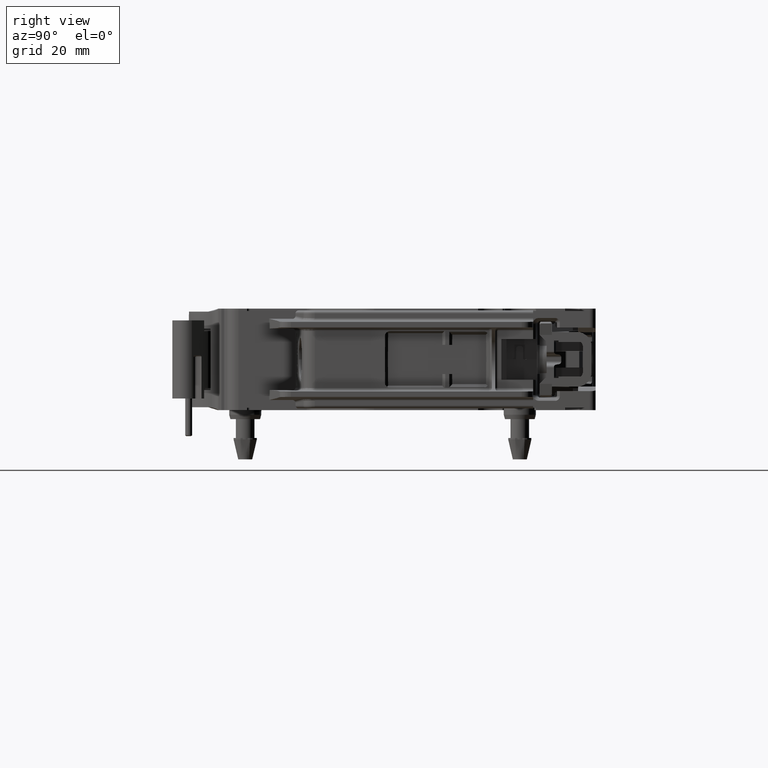
[diagram: clean part render]
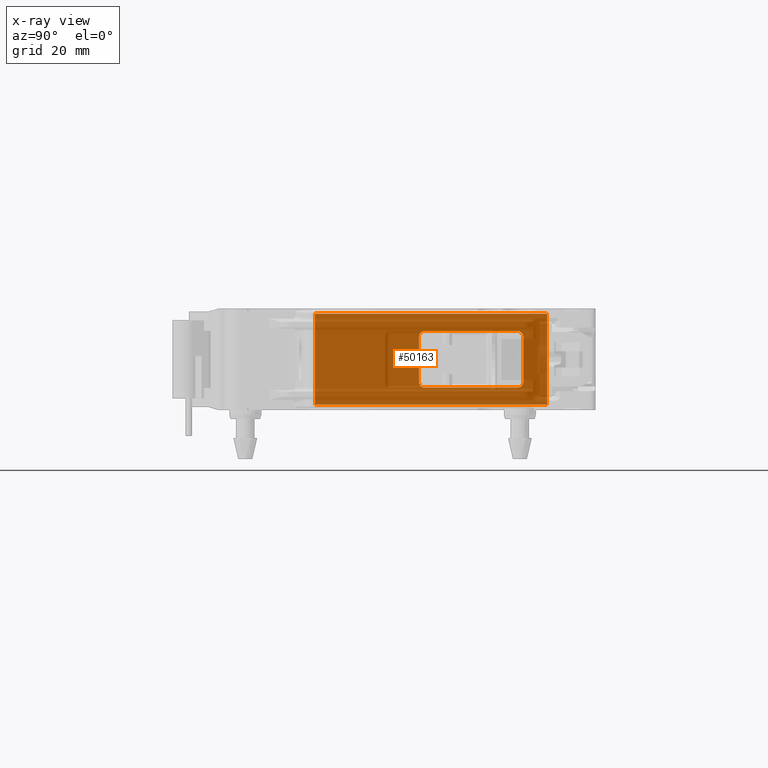
[diagram: x-ray — body ghosted, one internal face saturated and labeled with its STEP entity id]
A machine part, right view, then the same camera in x-ray: the body is ghosted and one INTERNAL B-rep face — a face not visible from any outside direction — is saturated and labeled: STEP entity #50163.
In plain terms, the highlighted planar face has unit normal (-1, -0.0049, 0).
Its self-contained STEP definition (entity closure, byte-faithful):
#15005=CARTESIAN_POINT('',(-4.270065404185E1,-1.71E0,-7.8E0));
#15006=CARTESIAN_POINT('',(-4.270069525104E1,-1.701666717612E0,-7.8E0));
#15007=CARTESIAN_POINT('',(-4.270077261423E1,-1.686022413081E0,
-7.801022272743E0));
#15008=CARTESIAN_POINT('',(-4.270091249419E1,-1.657736028279E0,
-7.806069079199E0));
#15009=CARTESIAN_POINT('',(-4.270106532951E1,-1.626829824631E0,
-7.816829419056E0));
#15010=CARTESIAN_POINT('',(-4.270122253608E1,-1.595039671126E0,
-7.835039182527E0));
#15011=CARTESIAN_POINT('',(-4.270135699991E1,-1.567848532335E0,
-7.857848016945E0));
#15012=CARTESIAN_POINT('',(-4.270146979323E1,-1.545039581489E0,
-7.885039092889E0));
#15013=CARTESIAN_POINT('',(-4.270155984370E1,-1.526829666753E0,
-7.916829261176E0));
#15014=CARTESIAN_POINT('',(-4.270161305569E1,-1.516069190198E0,
-7.947735574449E0));
#15015=CARTESIAN_POINT('',(-4.270163801326E1,-1.511022296685E0,
-7.976022156346E0));
#15016=CARTESIAN_POINT('',(-4.270164306865E1,-1.51E0,-7.991666615720E0));
#15017=CARTESIAN_POINT('',(-4.270164306865E1,-1.51E0,-8.E0));
#15060=DIRECTION('',(-4.945073575063E-3,9.999877730489E-1,0.E0));
#15061=VECTOR('',#15060,3.964865029611E1);
#15062=CARTESIAN_POINT('',(-4.250458854898E1,-4.135816551400E1,-7.8E0));
#15063=LINE('',#15062,#15061);
#16122=CARTESIAN_POINT('',(-4.259779525383E1,-2.251E1,-4.85E0));
#16123=CARTESIAN_POINT('',(-4.259758920784E1,-2.255166641194E1,-4.85E0));
#16124=CARTESIAN_POINT('',(-4.259720241381E1,-2.262988350933E1,
-4.844884210967E0));
#16125=CARTESIAN_POINT('',(-4.259667776547E1,-2.273597736602E1,
-4.825978600683E0));
#16126=CARTESIAN_POINT('',(-4.259619760595E1,-2.283307473748E1,
-4.798076395169E0));
#16127=CARTESIAN_POINT('',(-4.259560764533E1,-2.295237597736E1,
-4.750711408164E0));
#16128=CARTESIAN_POINT('',(-4.259495284255E1,-2.308478953308E1,
-4.674791975924E0));
#16129=CARTESIAN_POINT('',(-4.259428043358E1,-2.322076339411E1,
-4.560765971134E0));
#16130=CARTESIAN_POINT('',(-4.259371655683E1,-2.333478998070E1,
-4.424792423551E0));
#16131=CARTESIAN_POINT('',(-4.259334112193E1,-2.341071004501E1,
-4.292378809154E0));
#16132=CARTESIAN_POINT('',(-4.259310689309E1,-2.345807556438E1,
-4.173077222074E0));
#16133=CARTESIAN_POINT('',(-4.259296891104E1,-2.348597815516E1,
-4.075979389829E0));
#16134=CARTESIAN_POINT('',(-4.259287541865E1,-2.350488409107E1,
-3.969884792714E0));
#16135=CARTESIAN_POINT('',(-4.259285011980E1,-2.351E1,-3.891666921398E0));
#16136=CARTESIAN_POINT('',(-4.259285011980E1,-2.351E1,-3.85E0));
#16151=CARTESIAN_POINT('',(-4.259285011980E1,-2.351E1,3.85E0));
#16152=CARTESIAN_POINT('',(-4.259285011980E1,-2.351E1,3.891666921398E0));
#16153=CARTESIAN_POINT('',(-4.259287541865E1,-2.350488409107E1,
3.969884792714E0));
#16154=CARTESIAN_POINT('',(-4.259296891104E1,-2.348597815516E1,
4.075979389829E0));
#16155=CARTESIAN_POINT('',(-4.259310689309E1,-2.345807556438E1,
4.173077222074E0));
#16156=CARTESIAN_POINT('',(-4.259334112193E1,-2.341071004501E1,
4.292378809154E0));
#16157=CARTESIAN_POINT('',(-4.259371655683E1,-2.333478998070E1,
4.424792423551E0));
#16158=CARTESIAN_POINT('',(-4.259428043358E1,-2.322076339411E1,
4.560765971134E0));
#16159=CARTESIAN_POINT('',(-4.259495284255E1,-2.308478953308E1,
4.674791975924E0));
#16160=CARTESIAN_POINT('',(-4.259560764533E1,-2.295237597736E1,
4.750711408164E0));
#16161=CARTESIAN_POINT('',(-4.259619760595E1,-2.283307473748E1,
4.798076395169E0));
#16162=CARTESIAN_POINT('',(-4.259667776547E1,-2.273597736602E1,
4.825978600683E0));
#16163=CARTESIAN_POINT('',(-4.259720241381E1,-2.262988350933E1,
4.844884210967E0));
#16164=CARTESIAN_POINT('',(-4.259758920784E1,-2.255166641194E1,4.85E0));
#16165=CARTESIAN_POINT('',(-4.259779525383E1,-2.251E1,4.85E0));
#16167=DIRECTION('',(0.E0,0.E0,-1.E0));
#16168=VECTOR('',#16167,1.6E1);
#16169=CARTESIAN_POINT('',(-4.270164306865E1,-1.51E0,8.E0));
#16170=LINE('',#16169,#16168);
#16171=DIRECTION('',(-4.945073575063E-3,9.999877730489E-1,0.E0));
#16172=VECTOR('',#16171,3.964865029611E1);
#16173=CARTESIAN_POINT('',(-4.250458854898E1,-4.135816551400E1,7.8E0));
#16174=LINE('',#16173,#16172);
#16175=DIRECTION('',(0.E0,0.E0,1.E0));
#16176=VECTOR('',#16175,7.7E0);
#16177=CARTESIAN_POINT('',(-4.259285011980E1,-2.351E1,-3.85E0));
#16178=LINE('',#16177,#16176);
#16179=DIRECTION('',(4.945073575063E-3,-9.999877730489E-1,0.E0));
#16180=VECTOR('',#16179,1.590019441090E1);
#16181=CARTESIAN_POINT('',(-4.267642288505E1,-6.61E0,-4.85E0));
#16182=LINE('',#16181,#16180);
#16183=DIRECTION('',(0.E0,0.E0,-1.E0));
#16184=VECTOR('',#16183,7.7E0);
#16185=CARTESIAN_POINT('',(-4.268136801909E1,-5.61E0,3.85E0));
#16186=LINE('',#16185,#16184);
#16187=DIRECTION('',(-4.945073575063E-3,9.999877730489E-1,0.E0));
#16188=VECTOR('',#16187,1.590019441090E1);
#16189=CARTESIAN_POINT('',(-4.259779525383E1,-2.251E1,4.85E0));
#16190=LINE('',#16189,#16188);
#16191=DIRECTION('',(0.E0,0.E0,1.E0));
#16192=VECTOR('',#16191,1.56E1);
#16193=CARTESIAN_POINT('',(-4.250458854898E1,-4.135816551400E1,-7.8E0));
#16194=LINE('',#16193,#16192);
#16627=CARTESIAN_POINT('',(-4.270164306865E1,-1.51E0,8.E0));
#16628=CARTESIAN_POINT('',(-4.270164306865E1,-1.51E0,7.991666615720E0));
#16629=CARTESIAN_POINT('',(-4.270163801326E1,-1.511022296685E0,
7.976022156346E0));
#16630=CARTESIAN_POINT('',(-4.270161305569E1,-1.516069190198E0,
7.947735574449E0));
#16631=CARTESIAN_POINT('',(-4.270155984370E1,-1.526829666753E0,
7.916829261176E0));
#16632=CARTESIAN_POINT('',(-4.270146979323E1,-1.545039581489E0,
7.885039092889E0));
#16633=CARTESIAN_POINT('',(-4.270135699991E1,-1.567848532335E0,
7.857848016945E0));
#16634=CARTESIAN_POINT('',(-4.270122253608E1,-1.595039671126E0,
7.835039182527E0));
#16635=CARTESIAN_POINT('',(-4.270106532951E1,-1.626829824631E0,
7.816829419056E0));
#16636=CARTESIAN_POINT('',(-4.270091249419E1,-1.657736028279E0,
7.806069079199E0));
#16637=CARTESIAN_POINT('',(-4.270077261423E1,-1.686022413081E0,
7.801022272743E0));
#16638=CARTESIAN_POINT('',(-4.270069525104E1,-1.701666717612E0,7.8E0));
#16639=CARTESIAN_POINT('',(-4.270065404185E1,-1.71E0,7.8E0));
#16706=CARTESIAN_POINT('',(-4.268136801909E1,-5.61E0,-3.85E0));
#16707=CARTESIAN_POINT('',(-4.268136801909E1,-5.61E0,-3.891666921398E0));
#16708=CARTESIAN_POINT('',(-4.268134272024E1,-5.615115908927E0,
-3.969884792714E0));
#16709=CARTESIAN_POINT('',(-4.268124922785E1,-5.634021844841E0,
-4.075979389829E0));
#16710=CARTESIAN_POINT('',(-4.268111124580E1,-5.661924435622E0,
-4.173077222074E0));
#16711=CARTESIAN_POINT('',(-4.268087701696E1,-5.709289954991E0,
-4.292378809154E0));
#16712=CARTESIAN_POINT('',(-4.268050158206E1,-5.785210019301E0,
-4.424792423551E0));
#16713=CARTESIAN_POINT('',(-4.267993770531E1,-5.899236605891E0,
-4.560765971134E0));
#16714=CARTESIAN_POINT('',(-4.267926529634E1,-6.035210466922E0,
-4.674791975924E0));
#16715=CARTESIAN_POINT('',(-4.267861049356E1,-6.167624022638E0,
-4.750711408164E0));
#16716=CARTESIAN_POINT('',(-4.267802053294E1,-6.286925262517E0,
-4.798076395169E0));
#16717=CARTESIAN_POINT('',(-4.267754037342E1,-6.384022633978E0,
-4.825978600683E0));
#16718=CARTESIAN_POINT('',(-4.267701572508E1,-6.490116490667E0,
-4.844884210967E0));
#16719=CARTESIAN_POINT('',(-4.267662893105E1,-6.568333588061E0,-4.85E0));
#16720=CARTESIAN_POINT('',(-4.267642288505E1,-6.61E0,-4.85E0));
#16735=CARTESIAN_POINT('',(-4.267642288505E1,-6.61E0,4.85E0));
#16736=CARTESIAN_POINT('',(-4.267662893105E1,-6.568333588062E0,4.85E0));
#16737=CARTESIAN_POINT('',(-4.267701572508E1,-6.490116490667E0,
4.844884210967E0));
#16738=CARTESIAN_POINT('',(-4.267754037342E1,-6.384022633978E0,
4.825978600683E0));
#16739=CARTESIAN_POINT('',(-4.267802053294E1,-6.286925262517E0,
4.798076395169E0));
#16740=CARTESIAN_POINT('',(-4.267861049356E1,-6.167624022638E0,
4.750711408164E0));
#16741=CARTESIAN_POINT('',(-4.267926529634E1,-6.035210466922E0,
4.674791975924E0));
#16742=CARTESIAN_POINT('',(-4.267993770531E1,-5.899236605891E0,
4.560765971134E0));
#16743=CARTESIAN_POINT('',(-4.268050158206E1,-5.785210019301E0,
4.424792423551E0));
#16744=CARTESIAN_POINT('',(-4.268087701696E1,-5.709289954991E0,
4.292378809154E0));
#16745=CARTESIAN_POINT('',(-4.268111124580E1,-5.661924435622E0,
4.173077222074E0));
#16746=CARTESIAN_POINT('',(-4.268124922785E1,-5.634021844841E0,
4.075979389829E0));
#16747=CARTESIAN_POINT('',(-4.268134272024E1,-5.615115908927E0,
3.969884792714E0));
#16748=CARTESIAN_POINT('',(-4.268136801909E1,-5.61E0,3.891666921398E0));
#16749=CARTESIAN_POINT('',(-4.268136801909E1,-5.61E0,3.85E0));
#27373=CARTESIAN_POINT('',(-4.259779525383E1,-2.251E1,4.85E0));
#27375=VERTEX_POINT('',#27373);
#27377=CARTESIAN_POINT('',(-4.259285011980E1,-2.351E1,3.85E0));
#27379=VERTEX_POINT('',#27377);
#27381=CARTESIAN_POINT('',(-4.259285011980E1,-2.351E1,-3.85E0));
#27383=VERTEX_POINT('',#27381);
#27385=CARTESIAN_POINT('',(-4.259779525383E1,-2.251E1,-4.85E0));
#27387=VERTEX_POINT('',#27385);
#27389=CARTESIAN_POINT('',(-4.267642288505E1,-6.61E0,-4.85E0));
#27391=VERTEX_POINT('',#27389);
#27393=CARTESIAN_POINT('',(-4.268136801909E1,-5.61E0,-3.85E0));
#27395=VERTEX_POINT('',#27393);
#27397=CARTESIAN_POINT('',(-4.268136801909E1,-5.61E0,3.85E0));
#27399=VERTEX_POINT('',#27397);
#27401=CARTESIAN_POINT('',(-4.267642288505E1,-6.61E0,4.85E0));
#27403=VERTEX_POINT('',#27401);
#27480=CARTESIAN_POINT('',(-4.250458854898E1,-4.135816551400E1,-7.8E0));
#27481=CARTESIAN_POINT('',(-4.250458854898E1,-4.135816551400E1,7.8E0));
#27482=VERTEX_POINT('',#27480);
#27483=VERTEX_POINT('',#27481);
#28235=CARTESIAN_POINT('',(-4.270065404185E1,-1.71E0,7.8E0));
#28236=VERTEX_POINT('',#28235);
#28237=CARTESIAN_POINT('',(-4.270065404185E1,-1.71E0,-7.8E0));
#28238=VERTEX_POINT('',#28237);
#28239=VERTEX_POINT('',#16627);
#28240=VERTEX_POINT('',#15017);
#50134=CARTESIAN_POINT('',(-4.25E1,-4.228605724416E1,-7.8E0));
#50135=DIRECTION('',(-9.999877730489E-1,-4.945073575064E-3,0.E0));
#50136=DIRECTION('',(0.E0,0.E0,-1.E0));
#50137=AXIS2_PLACEMENT_3D('',#50134,#50135,#50136);
#50138=PLANE('',#50137);
#50139=ORIENTED_EDGE('',*,*,#47910,.T.);
#50140=ORIENTED_EDGE('',*,*,#48864,.F.);
#50141=ORIENTED_EDGE('',*,*,#48939,.F.);
#50143=ORIENTED_EDGE('',*,*,#50142,.T.);
#50145=ORIENTED_EDGE('',*,*,#50144,.T.);
#50147=ORIENTED_EDGE('',*,*,#50146,.F.);
#50148=EDGE_LOOP('',(#50139,#50140,#50141,#50143,#50145,#50147));
#50149=FACE_OUTER_BOUND('',#50148,.F.);
#50150=ORIENTED_EDGE('',*,*,#50101,.F.);
#50151=ORIENTED_EDGE('',*,*,#50087,.F.);
#50152=ORIENTED_EDGE('',*,*,#50073,.F.);
#50154=ORIENTED_EDGE('',*,*,#50153,.F.);
#50156=ORIENTED_EDGE('',*,*,#50155,.F.);
#50158=ORIENTED_EDGE('',*,*,#50157,.F.);
#50159=ORIENTED_EDGE('',*,*,#50126,.F.);
#50160=ORIENTED_EDGE('',*,*,#50115,.F.);
#50161=EDGE_LOOP('',(#50150,#50151,#50152,#50154,#50156,#50158,#50159,#50160));
#50162=FACE_BOUND('',#50161,.F.);
#15018=B_SPLINE_CURVE_WITH_KNOTS('',3,(#15005,#15006,#15007,#15008,#15009,
#15010,#15011,#15012,#15013,#15014,#15015,#15016,#15017),.UNSPECIFIED.,.F.,.F.,(
4,1,1,1,1,1,1,1,1,1,4),(0.E0,6.25E-2,1.25E-1,2.5E-1,3.75E-1,5.E-1,6.25E-1,
7.5E-1,8.75E-1,9.375E-1,1.E0),.UNSPECIFIED.);
#16137=B_SPLINE_CURVE_WITH_KNOTS('',3,(#16122,#16123,#16124,#16125,#16126,
#16127,#16128,#16129,#16130,#16131,#16132,#16133,#16134,#16135,#16136),
.UNSPECIFIED.,.F.,.F.,(4,1,1,1,1,1,1,1,1,1,1,1,4),(0.E0,6.25E-2,1.25E-1,
1.875E-1,2.5E-1,3.75E-1,5.E-1,6.25E-1,7.5E-1,8.125E-1,8.75E-1,9.375E-1,1.E0),
.UNSPECIFIED.);
#16166=B_SPLINE_CURVE_WITH_KNOTS('',3,(#16151,#16152,#16153,#16154,#16155,
#16156,#16157,#16158,#16159,#16160,#16161,#16162,#16163,#16164,#16165),
.UNSPECIFIED.,.F.,.F.,(4,1,1,1,1,1,1,1,1,1,1,1,4),(0.E0,6.25E-2,1.25E-1,
1.875E-1,2.5E-1,3.75E-1,5.E-1,6.25E-1,7.5E-1,8.125E-1,8.75E-1,9.375E-1,1.E0),
.UNSPECIFIED.);
#16640=B_SPLINE_CURVE_WITH_KNOTS('',3,(#16627,#16628,#16629,#16630,#16631,
#16632,#16633,#16634,#16635,#16636,#16637,#16638,#16639),.UNSPECIFIED.,.F.,.F.,(
4,1,1,1,1,1,1,1,1,1,4),(0.E0,6.25E-2,1.25E-1,2.5E-1,3.75E-1,5.E-1,6.25E-1,
7.5E-1,8.75E-1,9.375E-1,1.E0),.UNSPECIFIED.);
#16721=B_SPLINE_CURVE_WITH_KNOTS('',3,(#16706,#16707,#16708,#16709,#16710,
#16711,#16712,#16713,#16714,#16715,#16716,#16717,#16718,#16719,#16720),
.UNSPECIFIED.,.F.,.F.,(4,1,1,1,1,1,1,1,1,1,1,1,4),(0.E0,6.25E-2,1.25E-1,
1.875E-1,2.5E-1,3.75E-1,5.E-1,6.25E-1,7.5E-1,8.125E-1,8.75E-1,9.375E-1,1.E0),
.UNSPECIFIED.);
#16750=B_SPLINE_CURVE_WITH_KNOTS('',3,(#16735,#16736,#16737,#16738,#16739,
#16740,#16741,#16742,#16743,#16744,#16745,#16746,#16747,#16748,#16749),
.UNSPECIFIED.,.F.,.F.,(4,1,1,1,1,1,1,1,1,1,1,1,4),(0.E0,6.25E-2,1.25E-1,
1.875E-1,2.5E-1,3.75E-1,5.E-1,6.25E-1,7.5E-1,8.125E-1,8.75E-1,9.375E-1,1.E0),
.UNSPECIFIED.);
#47910=EDGE_CURVE('',#28239,#28240,#16170,.T.);
#48864=EDGE_CURVE('',#28238,#28240,#15018,.T.);
#48939=EDGE_CURVE('',#27482,#28238,#15063,.T.);
#50073=EDGE_CURVE('',#27391,#27387,#16182,.T.);
#50087=EDGE_CURVE('',#27387,#27383,#16137,.T.);
#50101=EDGE_CURVE('',#27383,#27379,#16178,.T.);
#50115=EDGE_CURVE('',#27379,#27375,#16166,.T.);
#50126=EDGE_CURVE('',#27375,#27403,#16190,.T.);
#50142=EDGE_CURVE('',#27482,#27483,#16194,.T.);
#50144=EDGE_CURVE('',#27483,#28236,#16174,.T.);
#50146=EDGE_CURVE('',#28239,#28236,#16640,.T.);
#50153=EDGE_CURVE('',#27395,#27391,#16721,.T.);
#50155=EDGE_CURVE('',#27399,#27395,#16186,.T.);
#50157=EDGE_CURVE('',#27403,#27399,#16750,.T.);
#50163=ADVANCED_FACE('',(#50149,#50162),#50138,.F.);